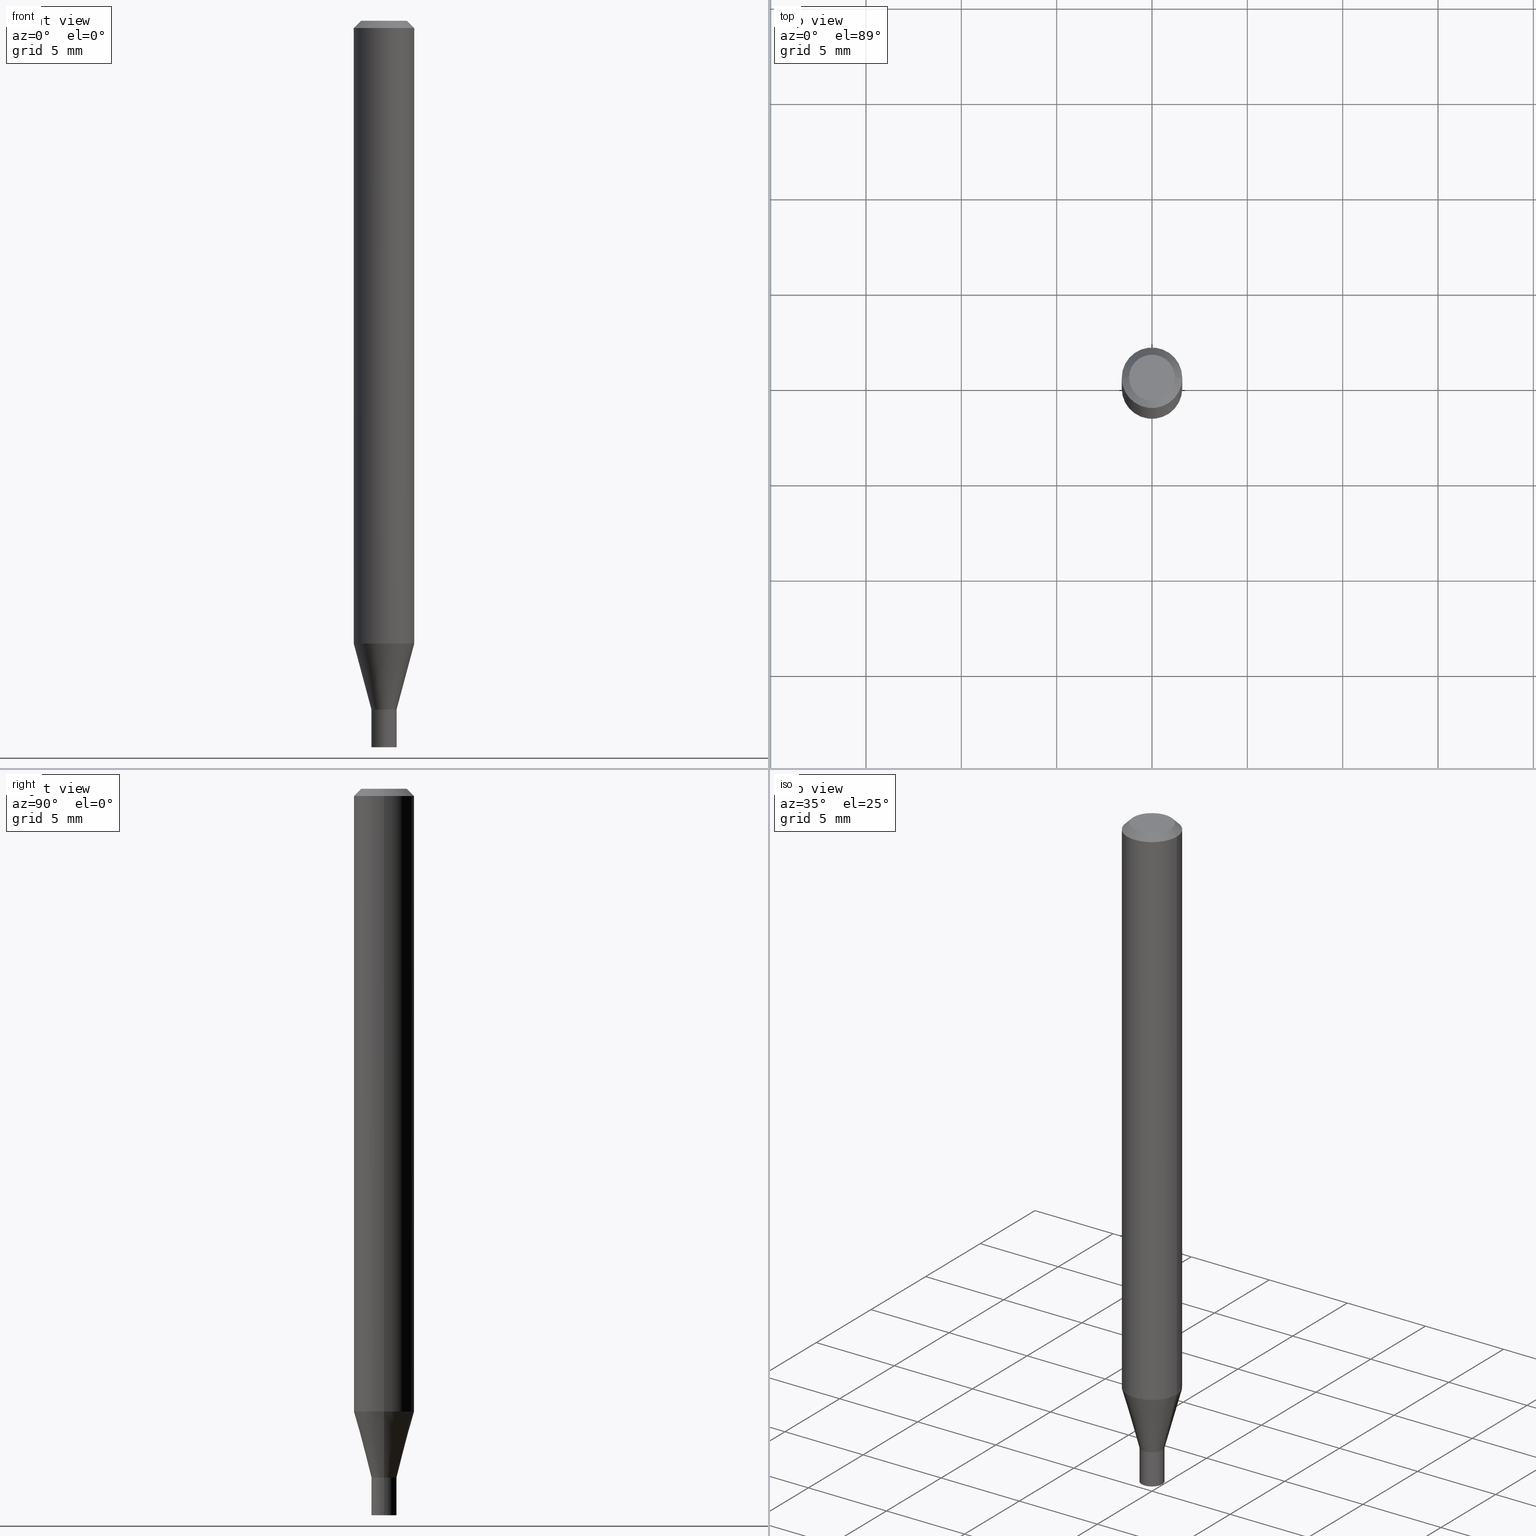
[diagram: canonical four-view strip — front | top / right | iso, engineering-drawing reading convention]
A machine part, canonical four-view strip (front | top / right | iso — engineering-drawing reading convention). The complete STEP part file that produces these views, byte-faithful:
ISO-10303-21;
HEADER;
FILE_DESCRIPTION (( 'STEP AP203' ),
    '1' );
FILE_NAME ('04087.STEP',
    '2024-03-14T16:58:20',
    ( '' ),
    ( '' ),
    'SwSTEP 2.0',
    'SolidWorks 2023',
    '' );
FILE_SCHEMA (( 'CONFIG_CONTROL_DESIGN' ));
ENDSEC;

DATA;
#1 = APPLICATION_CONTEXT ( 'configuration controlled 3d designs of mechanical parts and assemblies' ) ;
#2 = CARTESIAN_POINT ( 'NONE',  ( -0.02549999999999999489, -4.783698066216128840E-15, -1.422000000000000375 ) ) ;
#3 = CARTESIAN_POINT ( 'NONE',  ( 0.02599999999999999534, -1.815570296198429286E-16, 1.267805961706943054E-30 ) ) ;
#4 = AXIS2_PLACEMENT_3D ( 'NONE', #12, #63, #351 ) ;
#5 = ADVANCED_FACE ( 'NONE', ( #160 ), #435, .T. ) ;
#7 = CONICAL_SURFACE ( 'NONE', #193, 0.02549999999999999489, 0.7853981633974739252 ) ;
#6 = LINE ( 'NONE', #145, #38 ) ;
#8 = CARTESIAN_POINT ( 'NONE',  ( 3.476233907992172058E-29, -4.963140723165531861E-15, -1.421500000000000208 ) ) ;
#9 = CIRCLE ( 'NONE', #464, 0.02549999999999999489 ) ;
#10 = FACE_OUTER_BOUND ( 'NONE', #175, .T. ) ;
#11 = CARTESIAN_POINT ( 'NONE',  ( 3.477456642395264859E-29, -4.964886463834953365E-15, -1.421999999999999931 ) ) ;
#12 = CARTESIAN_POINT ( 'NONE',  ( -3.597438323505677396E-45, 5.136188506020282969E-31, 1.471062854863228050E-16 ) ) ;
#13 = EDGE_LOOP ( 'NONE', ( #449, #270, #382, #204 ) ) ;
#14 = ADVANCED_FACE ( 'NONE', ( #46 ), #437, .T. ) ;
#15 = DATE_TIME_ROLE ( 'classification_date' ) ;
#16 = VECTOR ( 'NONE', #94, 39.37007874015748143 ) ;
#17 = CC_DESIGN_APPROVAL ( #97, ( #440 ) ) ;
#18 = MANIFOLD_SOLID_BREP ( 'Body-Move/Copy2[2]', #404 ) ;
#19 = ORIENTED_EDGE ( 'NONE', *, *, #149, .T. ) ;
#20 = CARTESIAN_POINT ( 'NONE',  ( 0.06250000000000000000, -4.811533449433679005E-16, -0.01499999999999999944 ) ) ;
#21 = CALENDAR_DATE ( 2024, 14, 3 ) ;
#22 = ORIENTED_EDGE ( 'NONE', *, *, #149, .F. ) ;
#23 = ADVANCED_FACE ( 'NONE', ( #336 ), #86, .F. ) ;
#24 = EDGE_LOOP ( 'NONE', ( #376, #119 ) ) ;
#25 = CARTESIAN_POINT ( 'NONE',  ( 0.06250000000000000000, -4.364351673553916694E-16, 3.047610484872459871E-30 ) ) ;
#26 = ORIENTED_EDGE ( 'NONE', *, *, #292, .F. ) ;
#27 = DIRECTION ( 'NONE',  ( -2.438088387897960049E-29, 3.491481338843145188E-15, 1.000000000000000000 ) ) ;
#28 = DATE_TIME_ROLE ( 'creation_date' ) ;
#29 = VERTEX_POINT ( 'NONE', #255 ) ;
#30 = CARTESIAN_POINT ( 'NONE',  ( 0.02599999999999999534, -5.146443493454796047E-15, -1.421999999999999931 ) ) ;
#31 = ORIENTED_EDGE ( 'NONE', *, *, #147, .T. ) ;
#32 = EDGE_CURVE ( 'NONE', #35, #305, #243, .T. ) ;
#33 = CARTESIAN_POINT ( 'NONE',  ( 0.000000000000000000, 0.000000000000000000, 0.000000000000000000 ) ) ;
#34 = CARTESIAN_POINT ( 'NONE',  ( 0.000000000000000000, 0.000000000000000000, 0.000000000000000000 ) ) ;
#35 = VERTEX_POINT ( 'NONE', #180 ) ;
#36 = CIRCLE ( 'NONE', #92, 0.02599999999999999534 ) ;
#37 = DIRECTION ( 'NONE',  ( -2.445468806185136877E-29, 3.491481338843145188E-15, 1.000000000000000000 ) ) ;
#38 = VECTOR ( 'NONE', #364, 39.37007874015748143 ) ;
#39 = CARTESIAN_POINT ( 'NONE',  ( 3.144335237490484216E-29, -4.489277383951151768E-15, -1.285780145523736984 ) ) ;
#40 = ADVANCED_FACE ( 'NONE', ( #321 ), #466, .F. ) ;
#41 = DIRECTION ( 'NONE',  ( 1.000000000000000000, -6.982962677686262766E-15, 0.000000000000000000 ) ) ;
#42 = DIRECTION ( 'NONE',  ( -2.445468806185136597E-29, 3.491481338843145583E-15, 1.000000000000000000 ) ) ;
#43 = CARTESIAN_POINT ( 'NONE',  ( 3.477456642395264859E-29, -4.964886463834954154E-15, -1.422000000000000375 ) ) ;
#45 = CONICAL_SURFACE ( 'NONE', #413, 0.06250000000000000000, 0.7853981633974435050 ) ;
#44 = DIRECTION ( 'NONE',  ( -2.445468806185136877E-29, 3.491481338843145188E-15, 1.000000000000000000 ) ) ;
#46 = FACE_OUTER_BOUND ( 'NONE', #293, .T. ) ;
#47 = DIRECTION ( 'NONE',  ( 1.000000000000000000, -6.982962677686262766E-15, 0.000000000000000000 ) ) ;
#48 = CIRCLE ( 'NONE', #412, 0.02599999999999999534 ) ;
#49 = AXIS2_PLACEMENT_3D ( 'NONE', #187, #327, #288 ) ;
#50 = DIRECTION ( 'NONE',  ( 0.2588190451025211836, 1.565188264969622559E-15, 0.9659258262890679791 ) ) ;
#51 = EDGE_CURVE ( 'NONE', #245, #348, #394, .T. ) ;
#52 = PERSON_AND_ORGANIZATION ( #181, #110 ) ;
#53 = CALENDAR_DATE ( 2024, 14, 3 ) ;
#54 = CARTESIAN_POINT ( 'NONE',  ( 3.477456642395264859E-29, -4.964886463834954154E-15, -1.422000000000000375 ) ) ;
#55 = CARTESIAN_POINT ( 'NONE',  ( 0.000000000000000000, 0.000000000000000000, 0.000000000000000000 ) ) ;
#56 = EDGE_LOOP ( 'NONE', ( #241, #409, #343, #455 ) ) ;
#57 = VERTEX_POINT ( 'NONE', #195 ) ;
#58 = CARTESIAN_POINT ( 'NONE',  ( 0.06250000000000000000, -4.925712551306544226E-15, -1.285780145523736984 ) ) ;
#59 = APPROVAL_DATE_TIME ( #410, #431 ) ;
#60 = ORIENTED_EDGE ( 'NONE', *, *, #214, .T. ) ;
#61 = PERSON_AND_ORGANIZATION ( #181, #110 ) ;
#62 = EDGE_LOOP ( 'NONE', ( #64, #172, #329, #156 ) ) ;
#63 = DIRECTION ( 'NONE',  ( -2.445468806185136597E-29, 3.491481338843145583E-15, 1.000000000000000000 ) ) ;
#64 = ORIENTED_EDGE ( 'NONE', *, *, #32, .T. ) ;
#65 = CC_DESIGN_APPROVAL ( #434, ( #302 ) ) ;
#66 = LINE ( 'NONE', #277, #461 ) ;
#67 = DIRECTION ( 'NONE',  ( -2.445468806185136597E-29, 3.491481338843145583E-15, 1.000000000000000000 ) ) ;
#68 = ORIENTED_EDGE ( 'NONE', *, *, #147, .F. ) ;
#69 = DIRECTION ( 'NONE',  ( -2.445468806185136597E-29, 3.491481338843145583E-15, 1.000000000000000000 ) ) ;
#70 = CC_DESIGN_PERSON_AND_ORGANIZATION_ASSIGNMENT ( #374, #294, ( #352 ) ) ;
#71 = EDGE_CURVE ( 'NONE', #380, #130, #142, .T. ) ;
#72 = AXIS2_PLACEMENT_3D ( 'NONE', #116, #251, #402 ) ;
#73 = VECTOR ( 'NONE', #50, 39.37007874015748854 ) ;
#74 = DIRECTION ( 'NONE',  ( -0.7071067811865656694, 7.493145998870420424E-15, 0.7071067811865294761 ) ) ;
#75 = DIRECTION ( 'NONE',  ( -2.445468806185136597E-29, 3.491481338843145583E-15, 1.000000000000000000 ) ) ;
#76 = DIRECTION ( 'NONE',  ( 1.000000000000000000, -6.982962677686280910E-15, 0.000000000000000000 ) ) ;
#77 = EDGE_CURVE ( 'NONE', #90, #93, #369, .T. ) ;
#78 = AXIS2_PLACEMENT_3D ( 'NONE', #39, #320, #41 ) ;
#79 = AXIS2_PLACEMENT_3D ( 'NONE', #188, #285, #430 ) ;
#80 = APPLICATION_CONTEXT ( 'configuration controlled 3d designs of mechanical parts and assemblies' ) ;
#81 = ORIENTED_EDGE ( 'NONE', *, *, #286, .T. ) ;
#82 = DIRECTION ( 'NONE',  ( -2.438088387897960049E-29, 3.491481338843145188E-15, 1.000000000000000000 ) ) ;
#83 = EDGE_CURVE ( 'NONE', #29, #212, #358, .T. ) ;
#84 = LENGTH_MEASURE_WITH_UNIT ( LENGTH_MEASURE( 0.02539999999999999897 ), #184 );
#85 = LINE ( 'NONE', #20, #317 ) ;
#86 = PLANE ( 'NONE',  #201 ) ;
#87 = CIRCLE ( 'NONE', #211, 0.02600000000000019656 ) ;
#88 = CIRCLE ( 'NONE', #79, 0.04749999999999999362 ) ;
#89 = CARTESIAN_POINT ( 'NONE',  ( 0.02600000000000019656, -5.146443493454798413E-15, -1.421999999999999931 ) ) ;
#90 = VERTEX_POINT ( 'NONE', #30 ) ;
#91 = DIRECTION ( 'NONE',  ( 0.7071067811865441310, -7.319954787623245001E-15, -0.7071067811865509034 ) ) ;
#92 = AXIS2_PLACEMENT_3D ( 'NONE', #229, #377, #217 ) ;
#93 = VERTEX_POINT ( 'NONE', #120 ) ;
#94 = DIRECTION ( 'NONE',  ( -2.445468806185136877E-29, 3.491481338843145188E-15, 1.000000000000000000 ) ) ;
#95 = DIMENSIONAL_EXPONENTS ( 1.000000000000000000, 0.000000000000000000, 0.000000000000000000, 0.000000000000000000, 0.000000000000000000, 0.000000000000000000, 0.000000000000000000 ) ;
#96 = ORIENTED_EDGE ( 'NONE', *, *, #182, .F. ) ;
#97 = APPROVAL ( #418, 'UNSPECIFIED' ) ;
#98 = ORIENTED_EDGE ( 'NONE', *, *, #397, .T. ) ;
#99 = EDGE_CURVE ( 'NONE', #57, #445, #295, .T. ) ;
#100 = DIRECTION ( 'NONE',  ( -2.445468806185136877E-29, 3.491481338843145188E-15, 1.000000000000000000 ) ) ;
#101 = ORIENTED_EDGE ( 'NONE', *, *, #417, .T. ) ;
#102 = CONICAL_SURFACE ( 'NONE', #114, 0.06250000000000000000, 0.7853981633974435050 ) ;
#103 = CIRCLE ( 'NONE', #247, 0.06250000000000000000 ) ;
#104 = DIRECTION ( 'NONE',  ( -2.445468806185136597E-29, 3.491481338843145583E-15, 1.000000000000000000 ) ) ;
#105 = CARTESIAN_POINT ( 'NONE',  ( 0.02600000000000019656, -1.815570296198443091E-16, 1.267805961706953038E-30 ) ) ;
#106 = CYLINDRICAL_SURFACE ( 'NONE', #366, 0.02600000000000019656 ) ;
#107 = EDGE_CURVE ( 'NONE', #93, #90, #36, .T. ) ;
#108 = CARTESIAN_POINT ( 'NONE',  ( 1.815570296198776877E-16, 0.02599999999999503403, -1.421999999999999931 ) ) ;
#109 = DIRECTION ( 'NONE',  ( -1.000000000000000000, 6.982962677686265922E-15, -4.876176775795935793E-29 ) ) ;
#110 = ORGANIZATION ( 'UNSPECIFIED', 'UNSPECIFIED', '' ) ;
#111 = DIRECTION ( 'NONE',  ( -2.445468806185136597E-29, 3.491481338843145583E-15, 1.000000000000000000 ) ) ;
#112 = EDGE_CURVE ( 'NONE', #213, #441, #248, .T. ) ;
#113 = DIRECTION ( 'NONE',  ( 0.7071067811865656694, -2.468850131082446387E-15, 0.7071067811865294761 ) ) ;
#114 = AXIS2_PLACEMENT_3D ( 'NONE', #330, #395, #183 ) ;
#115 = CARTESIAN_POINT ( 'NONE',  ( 3.668203209277704895E-29, -5.237222008264718177E-15, -1.500000000000000222 ) ) ;
#116 = CARTESIAN_POINT ( 'NONE',  ( 0.000000000000000000, 0.000000000000000000, 0.000000000000000000 ) ) ;
#117 = EDGE_CURVE ( 'NONE', #130, #380, #257, .T. ) ;
#118 = CARTESIAN_POINT ( 'NONE',  ( 3.477456642395264859E-29, -4.964886463834953365E-15, -1.421999999999999931 ) ) ;
#119 = ORIENTED_EDGE ( 'NONE', *, *, #427, .T. ) ;
#120 = CARTESIAN_POINT ( 'NONE',  ( -0.02599999999999999534, -4.916313124752210742E-15, -1.421999999999999931 ) ) ;
#121 = AXIS2_PLACEMENT_3D ( 'NONE', #235, #27, #465 ) ;
#122 = APPROVAL_PERSON_ORGANIZATION ( #155, #431, #298 ) ;
#123 = APPROVAL_ROLE ( '' ) ;
#124 = ORIENTED_EDGE ( 'NONE', *, *, #112, .T. ) ;
#125 = CALENDAR_DATE ( 2024, 14, 3 ) ;
#126 = ORIENTED_EDGE ( 'NONE', *, *, #414, .F. ) ;
#127 = APPROVAL_DATE_TIME ( #300, #97 ) ;
#128 = ORIENTED_EDGE ( 'NONE', *, *, #446, .F. ) ;
#129 =( NAMED_UNIT ( * ) PLANE_ANGLE_UNIT ( ) SI_UNIT ( $, .RADIAN. ) );
#130 = VERTEX_POINT ( 'NONE', #58 ) ;
#131 = PRODUCT_DEFINITION_SHAPE ( 'NONE', 'NONE',  #302 ) ;
#132 = DIRECTION ( 'NONE',  ( 2.445468806185136597E-29, -3.491481338843145583E-15, -1.000000000000000000 ) ) ;
#133 = EDGE_CURVE ( 'NONE', #445, #57, #48, .T. ) ;
#134 = DATE_AND_TIME ( #152, #341 ) ;
#135 = CARTESIAN_POINT ( 'NONE',  ( -0.06250000000000000000, 4.440892098500626162E-16, -3.074334431409316114E-30 ) ) ;
#136 = VERTEX_POINT ( 'NONE', #367 ) ;
#137 = EDGE_LOOP ( 'NONE', ( #168, #60, #419, #457 ) ) ;
#138 = CC_DESIGN_SECURITY_CLASSIFICATION ( #440, ( #352 ) ) ;
#139 = DIRECTION ( 'NONE',  ( -1.000000000000000000, 6.982962677686265922E-15, -4.876176775795935793E-29 ) ) ;
#140 = ADVANCED_BREP_SHAPE_REPRESENTATION ( '04087', ( #328, #18, #426 ), #283 ) ;
#141 = DIRECTION ( 'NONE',  ( 2.438088387897960049E-29, -3.491481338843145188E-15, -1.000000000000000000 ) ) ;
#142 = CIRCLE ( 'NONE', #450, 0.06250000000000000000 ) ;
#143 = CIRCLE ( 'NONE', #49, 0.06250000000000000000 ) ;
#144 = ADVANCED_FACE ( 'NONE', ( #190 ), #102, .T. ) ;
#145 = CARTESIAN_POINT ( 'NONE',  ( -0.02599999999999999534, 1.847411112976260152E-16, -1.278923123466275386E-30 ) ) ;
#146 = CARTESIAN_POINT ( 'NONE',  ( 3.144335237490484216E-29, -4.489277383951151768E-15, -1.285780145523736984 ) ) ;
#147 = EDGE_CURVE ( 'NONE', #348, #441, #282, .T. ) ;
#148 = CARTESIAN_POINT ( 'NONE',  ( 0.04749999999999999362, -4.035134999187575172E-16, 1.471062854863253934E-16 ) ) ;
#149 = EDGE_CURVE ( 'NONE', #305, #35, #87, .T. ) ;
#150 = VECTOR ( 'NONE', #113, 39.37007874015748143 ) ;
#151 = DIRECTION ( 'NONE',  ( -2.445468806185136597E-29, 3.491481338843145583E-15, 1.000000000000000000 ) ) ;
#152 = CALENDAR_DATE ( 2024, 14, 3 ) ;
#153 = AXIS2_PLACEMENT_3D ( 'NONE', #8, #400, #76 ) ;
#154 = PRODUCT ( '04087', '04087', '', ( #239 ) ) ;
#155 = PERSON_AND_ORGANIZATION ( #181, #110 ) ;
#156 = ORIENTED_EDGE ( 'NONE', *, *, #319, .F. ) ;
#157 = DIRECTION ( 'NONE',  ( -2.445468806185136597E-29, 3.491481338843145583E-15, 1.000000000000000000 ) ) ;
#158 = APPROVAL_STATUS ( 'not_yet_approved' ) ;
#159 = EDGE_LOOP ( 'NONE', ( #203, #232, #260, #296 ) ) ;
#160 = FACE_OUTER_BOUND ( 'NONE', #333, .T. ) ;
#161 = CARTESIAN_POINT ( 'NONE',  ( 0.000000000000000000, 0.000000000000000000, 0.000000000000000000 ) ) ;
#162 = APPROVAL_STATUS ( 'not_yet_approved' ) ;
#163 = ORIENTED_EDGE ( 'NONE', *, *, #234, .F. ) ;
#164 = ADVANCED_FACE ( 'NONE', ( #267 ), #169, .F. ) ;
#165 = LINE ( 'NONE', #25, #16 ) ;
#166 = AXIS2_PLACEMENT_3D ( 'NONE', #33, #281, #396 ) ;
#167 = COORDINATED_UNIVERSAL_TIME_OFFSET ( 5, 0, .BEHIND. ) ;
#168 = ORIENTED_EDGE ( 'NONE', *, *, #427, .F. ) ;
#169 = CYLINDRICAL_SURFACE ( 'NONE', #249, 0.02600000000000019656 ) ;
#170 = CARTESIAN_POINT ( 'NONE',  ( 3.668203209277705088E-31, -5.237222008264718399E-17, -0.01499999999999999944 ) ) ;
#171 = FACE_OUTER_BOUND ( 'NONE', #13, .T. ) ;
#172 = ORIENTED_EDGE ( 'NONE', *, *, #182, .T. ) ;
#173 = LINE ( 'NONE', #105, #200 ) ;
#174 = FACE_OUTER_BOUND ( 'NONE', #340, .T. ) ;
#175 = EDGE_LOOP ( 'NONE', ( #26, #460 ) ) ;
#176 = CARTESIAN_POINT ( 'NONE',  ( -0.06250000000000000000, -4.045188174101089941E-15, -1.285780145523736984 ) ) ;
#177 = CARTESIAN_POINT ( 'NONE',  ( -0.02599999999999999534, -4.916313124752210742E-15, -1.500000000000000222 ) ) ;
#178 = CC_DESIGN_PERSON_AND_ORGANIZATION_ASSIGNMENT ( #339, #345, ( #154 ) ) ;
#179 = DIRECTION ( 'NONE',  ( 2.438088387897960049E-29, -3.491481338843145188E-15, -1.000000000000000000 ) ) ;
#180 = CARTESIAN_POINT ( 'NONE',  ( 0.02600000000000019656, -5.146443493454798413E-15, -1.421999999999999931 ) ) ;
#181 = PERSON ( 'UNSPECIFIED', 'UNSPECIFIED', 'UNSPECIFIED', ('UNSPECIFIED'), ('UNSPECIFIED'), ('UNSPECIFIED') ) ;
#182 = EDGE_CURVE ( 'NONE', #305, #380, #66, .T. ) ;
#183 = DIRECTION ( 'NONE',  ( -1.000000000000000000, 6.982962677686266711E-15, 0.000000000000000000 ) ) ;
#184 =( LENGTH_UNIT ( ) NAMED_UNIT ( * ) SI_UNIT ( $, .METRE. ) );
#185 = CARTESIAN_POINT ( 'NONE',  ( 3.668203209277705088E-31, -5.237222008264718399E-17, -0.01499999999999999944 ) ) ;
#186 = CC_DESIGN_APPROVAL ( #431, ( #352 ) ) ;
#187 = CARTESIAN_POINT ( 'NONE',  ( 3.668203209277705088E-31, -5.237222008264718399E-17, -0.01499999999999999944 ) ) ;
#188 = CARTESIAN_POINT ( 'NONE',  ( -3.597438323505677396E-45, 5.136188506020282969E-31, 1.471062854863228050E-16 ) ) ;
#189 = EDGE_CURVE ( 'NONE', #35, #441, #173, .T. ) ;
#190 = FACE_OUTER_BOUND ( 'NONE', #159, .T. ) ;
#191 = AXIS2_PLACEMENT_3D ( 'NONE', #11, #151, #254 ) ;
#192 = ORIENTED_EDGE ( 'NONE', *, *, #428, .T. ) ;
#193 = AXIS2_PLACEMENT_3D ( 'NONE', #458, #104, #392 ) ;
#194 = DIRECTION ( 'NONE',  ( -2.445468806185136597E-29, 3.491481338843145583E-15, 1.000000000000000000 ) ) ;
#195 = CARTESIAN_POINT ( 'NONE',  ( 0.02599999999999999534, -5.418779037884561648E-15, -1.500000000000000222 ) ) ;
#196 = FACE_OUTER_BOUND ( 'NONE', #299, .T. ) ;
#197 = ADVANCED_FACE ( 'NONE', ( #215 ), #357, .F. ) ;
#198 = CYLINDRICAL_SURFACE ( 'NONE', #166, 0.06250000000000000000 ) ;
#199 = ORIENTED_EDGE ( 'NONE', *, *, #51, .F. ) ;
#200 = VECTOR ( 'NONE', #37, 39.37007874015748143 ) ;
#201 = AXIS2_PLACEMENT_3D ( 'NONE', #425, #82, #252 ) ;
#202 = AXIS2_PLACEMENT_3D ( 'NONE', #161, #67, #354 ) ;
#203 = ORIENTED_EDGE ( 'NONE', *, *, #214, .F. ) ;
#204 = ORIENTED_EDGE ( 'NONE', *, *, #107, .F. ) ;
#205 = DIRECTION ( 'NONE',  ( -2.445468806185136597E-29, 3.491481338843145583E-15, 1.000000000000000000 ) ) ;
#206 = DIRECTION ( 'NONE',  ( 1.000000000000000000, -6.982962677686267499E-15, 4.876176775795935793E-29 ) ) ;
#207 = DATE_AND_TIME ( #53, #216 ) ;
#208 = DIRECTION ( 'NONE',  ( 0.000000000000000000, 0.000000000000000000, 1.000000000000000000 ) ) ;
#209 = VERTEX_POINT ( 'NONE', #361 ) ;
#210 = DIRECTION ( 'NONE',  ( -1.000000000000000000, 6.982962677686266711E-15, 0.000000000000000000 ) ) ;
#211 = AXIS2_PLACEMENT_3D ( 'NONE', #221, #365, #459 ) ;
#212 = VERTEX_POINT ( 'NONE', #148 ) ;
#213 = VERTEX_POINT ( 'NONE', #326 ) ;
#214 = EDGE_CURVE ( 'NONE', #212, #209, #85, .T. ) ;
#215 = FACE_OUTER_BOUND ( 'NONE', #24, .T. ) ;
#216 = LOCAL_TIME ( 12, 58, 20.00000000000000000, #342 ) ;
#217 = DIRECTION ( 'NONE',  ( 1.000000000000000000, -6.982962677686258822E-15, 0.000000000000000000 ) ) ;
#218 = ADVANCED_FACE ( 'NONE', ( #10 ), #452, .F. ) ;
#219 = CARTESIAN_POINT ( 'NONE',  ( 3.316907271900976096E-16, 0.04749999999999999362, -9.229222085188799396E-17 ) ) ;
#220 = DESIGN_CONTEXT ( 'detailed design', #80, 'design' ) ;
#221 = CARTESIAN_POINT ( 'NONE',  ( 3.477456642395264859E-29, -4.964886463834953365E-15, -1.421999999999999931 ) ) ;
#222 = AXIS2_PLACEMENT_3D ( 'NONE', #279, #205, #390 ) ;
#223 = DIRECTION ( 'NONE',  ( 1.000000000000000000, -6.982962677686266711E-15, 0.000000000000000000 ) ) ;
#224 = DIRECTION ( 'NONE',  ( -2.445468806185136597E-29, 3.491481338843145583E-15, 1.000000000000000000 ) ) ;
#225 = DIRECTION ( 'NONE',  ( -2.445468806185136597E-29, 3.491481338843145583E-15, 1.000000000000000000 ) ) ;
#226 = LOCAL_TIME ( 12, 58, 20.00000000000000000, #379 ) ;
#227 = EDGE_CURVE ( 'NONE', #441, #348, #421, .T. ) ;
#228 = LINE ( 'NONE', #3, #318 ) ;
#229 = CARTESIAN_POINT ( 'NONE',  ( 3.477456642395264859E-29, -4.964886463834953365E-15, -1.421999999999999931 ) ) ;
#230 = PERSON_AND_ORGANIZATION ( #181, #110 ) ;
#231 = LINE ( 'NONE', #89, #73 ) ;
#232 = ORIENTED_EDGE ( 'NONE', *, *, #83, .F. ) ;
#233 = CARTESIAN_POINT ( 'NONE',  ( 3.668203209277704895E-29, -5.237222008264718177E-15, -1.500000000000000222 ) ) ;
#234 = EDGE_CURVE ( 'NONE', #130, #209, #165, .T. ) ;
#235 = CARTESIAN_POINT ( 'NONE',  ( 3.477456642395264859E-29, -4.964886463834954154E-15, -1.422000000000000375 ) ) ;
#236 = CONICAL_SURFACE ( 'NONE', #393, 0.02549999999999999489, 0.7853981633974739252 ) ;
#237 = ADVANCED_FACE ( 'NONE', ( #453 ), #45, .T. ) ;
#238 = DIRECTION ( 'NONE',  ( 1.000000000000000000, -6.982962677686276966E-15, 0.000000000000000000 ) ) ;
#239 = MECHANICAL_CONTEXT ( 'NONE', #1, 'mechanical' ) ;
#240 = ORIENTED_EDGE ( 'NONE', *, *, #51, .T. ) ;
#241 = ORIENTED_EDGE ( 'NONE', *, *, #428, .F. ) ;
#242 = ORIENTED_EDGE ( 'NONE', *, *, #117, .T. ) ;
#243 = CIRCLE ( 'NONE', #264, 0.02600000000000019656 ) ;
#244 = APPROVAL_PERSON_ORGANIZATION ( #438, #97, #123 ) ;
#245 = VERTEX_POINT ( 'NONE', #310 ) ;
#246 = AXIS2_PLACEMENT_3D ( 'NONE', #362, #42, #334 ) ;
#247 = AXIS2_PLACEMENT_3D ( 'NONE', #185, #287, #223 ) ;
#248 = LINE ( 'NONE', #323, #150 ) ;
#249 = AXIS2_PLACEMENT_3D ( 'NONE', #356, #315, #387 ) ;
#250 = CONICAL_SURFACE ( 'NONE', #462, 0.02600000000000019656, 0.2617993877991499074 ) ;
#251 = DIRECTION ( 'NONE',  ( -2.445468806185136597E-29, 3.491481338843145583E-15, 1.000000000000000000 ) ) ;
#252 = DIRECTION ( 'NONE',  ( 1.000000000000000000, -6.982962677686265922E-15, 4.876176775795935793E-29 ) ) ;
#253 = DIRECTION ( 'NONE',  ( -2.445468806185136597E-29, 3.491481338843145583E-15, 1.000000000000000000 ) ) ;
#254 = DIRECTION ( 'NONE',  ( 1.000000000000000000, -6.982962677686280121E-15, 0.000000000000000000 ) ) ;
#255 = CARTESIAN_POINT ( 'NONE',  ( -0.04749999999999999362, 3.578768372314212971E-16, 1.471062854863204137E-16 ) ) ;
#256 = ADVANCED_FACE ( 'NONE', ( #271 ), #274, .T. ) ;
#257 = CIRCLE ( 'NONE', #78, 0.06250000000000000000 ) ;
#258 = DIRECTION ( 'NONE',  ( -2.445468806185136597E-29, 3.491481338843145583E-15, 1.000000000000000000 ) ) ;
#259 = COORDINATED_UNIVERSAL_TIME_OFFSET ( 5, 0, .BEHIND. ) ;
#260 = ORIENTED_EDGE ( 'NONE', *, *, #280, .T. ) ;
#261 =( NAMED_UNIT ( * ) SI_UNIT ( $, .STERADIAN. ) SOLID_ANGLE_UNIT ( ) );
#262 = APPLICATION_PROTOCOL_DEFINITION ( 'international standard', 'config_control_design', 1994, #1 ) ;
#263 = ORIENTED_EDGE ( 'NONE', *, *, #286, .F. ) ;
#264 = AXIS2_PLACEMENT_3D ( 'NONE', #291, #75, #372 ) ;
#265 = CC_DESIGN_DATE_AND_TIME_ASSIGNMENT ( #207, #28, ( #302 ) ) ;
#266 = VECTOR ( 'NONE', #44, 39.37007874015748143 ) ;
#267 = FACE_OUTER_BOUND ( 'NONE', #268, .T. ) ;
#268 = EDGE_LOOP ( 'NONE', ( #22, #192, #31, #355 ) ) ;
#269 = APPROVAL_ROLE ( '' ) ;
#270 = ORIENTED_EDGE ( 'NONE', *, *, #133, .T. ) ;
#271 = FACE_OUTER_BOUND ( 'NONE', #385, .T. ) ;
#272 = ADVANCED_FACE ( 'NONE', ( #171 ), #311, .T. ) ;
#273 = EDGE_LOOP ( 'NONE', ( #313, #275 ) ) ;
#274 = CYLINDRICAL_SURFACE ( 'NONE', #202, 0.02599999999999999534 ) ;
#275 = ORIENTED_EDGE ( 'NONE', *, *, #107, .T. ) ;
#276 = CC_DESIGN_PERSON_AND_ORGANIZATION_ASSIGNMENT ( #52, #337, ( #440 ) ) ;
#277 = CARTESIAN_POINT ( 'NONE',  ( -0.02600000000000019656, -4.780145352537325575E-15, -1.421999999999999931 ) ) ;
#278 = DIRECTION ( 'NONE',  ( 1.000000000000000000, -6.982962677686266711E-15, 4.876176775795936353E-29 ) ) ;
#279 = CARTESIAN_POINT ( 'NONE',  ( 3.476233907992172058E-29, -4.963140723165531861E-15, -1.421500000000000208 ) ) ;
#280 = EDGE_CURVE ( 'NONE', #29, #136, #383, .T. ) ;
#281 = DIRECTION ( 'NONE',  ( -2.445468806185136597E-29, 3.491481338843145583E-15, 1.000000000000000000 ) ) ;
#282 = CIRCLE ( 'NONE', #153, 0.02600000000000019310 ) ;
#283 =( GEOMETRIC_REPRESENTATION_CONTEXT ( 3 ) GLOBAL_UNCERTAINTY_ASSIGNED_CONTEXT ( ( #373 ) ) GLOBAL_UNIT_ASSIGNED_CONTEXT ( ( #398, #129, #261 ) ) REPRESENTATION_CONTEXT ( 'NONE', 'WORKASPACE' ) );
#284 = DIRECTION ( 'NONE',  ( 1.000000000000000000, -6.982962677686280121E-15, 0.000000000000000000 ) ) ;
#285 = DIRECTION ( 'NONE',  ( -2.445468806185136597E-29, 3.491481338843145583E-15, 1.000000000000000000 ) ) ;
#286 = EDGE_CURVE ( 'NONE', #380, #136, #447, .T. ) ;
#287 = DIRECTION ( 'NONE',  ( -2.445468806185136597E-29, 3.491481338843145583E-15, 1.000000000000000000 ) ) ;
#288 = DIRECTION ( 'NONE',  ( 1.000000000000000000, -6.982962677686266711E-15, 0.000000000000000000 ) ) ;
#289 = CARTESIAN_POINT ( 'NONE',  ( -0.02600000000000019656, -4.412666763319206969E-15, -1.421999999999999931 ) ) ;
#290 = ORIENTED_EDGE ( 'NONE', *, *, #292, .T. ) ;
#291 = CARTESIAN_POINT ( 'NONE',  ( 3.477456642395264859E-29, -4.964886463834953365E-15, -1.421999999999999931 ) ) ;
#292 = EDGE_CURVE ( 'NONE', #213, #245, #9, .T. ) ;
#293 = EDGE_LOOP ( 'NONE', ( #96, #19, #416, #312 ) ) ;
#294 = PERSON_AND_ORGANIZATION_ROLE ( 'creator' ) ;
#295 = CIRCLE ( 'NONE', #401, 0.02599999999999999534 ) ;
#296 = ORIENTED_EDGE ( 'NONE', *, *, #446, .T. ) ;
#297 = CIRCLE ( 'NONE', #451, 0.02549999999999999489 ) ;
#298 = APPROVAL_ROLE ( '' ) ;
#299 = EDGE_LOOP ( 'NONE', ( #290, #240, #391, #344 ) ) ;
#300 = DATE_AND_TIME ( #21, #422 ) ;
#301 = ORIENTED_EDGE ( 'NONE', *, *, #71, .T. ) ;
#302 = PRODUCT_DEFINITION ( 'UNKNOWN', '', #352, #220 ) ;
#303 = CARTESIAN_POINT ( 'NONE',  ( -0.06250000000000000000, 3.840629472727444916E-16, -0.01499999999999999944 ) ) ;
#304 = DATE_AND_TIME ( #125, #226 ) ;
#305 = VERTEX_POINT ( 'NONE', #289 ) ;
#306 = VECTOR ( 'NONE', #74, 39.37007874015748143 ) ;
#307 = CALENDAR_DATE ( 2024, 14, 3 ) ;
#308 = EDGE_LOOP ( 'NONE', ( #420, #386 ) ) ;
#309 = PRODUCT_RELATED_PRODUCT_CATEGORY ( 'detail', '', ( #154 ) ) ;
#310 = CARTESIAN_POINT ( 'NONE',  ( -0.02549999999999999489, -4.781048839042016850E-15, -1.422000000000000375 ) ) ;
#311 = CYLINDRICAL_SURFACE ( 'NONE', #359, 0.02599999999999999534 ) ;
#312 = ORIENTED_EDGE ( 'NONE', *, *, #71, .F. ) ;
#313 = ORIENTED_EDGE ( 'NONE', *, *, #77, .T. ) ;
#314 = ADVANCED_FACE ( 'NONE', ( #436 ), #250, .T. ) ;
#315 = DIRECTION ( 'NONE',  ( -2.445468806185136597E-29, 3.491481338843145583E-15, 1.000000000000000000 ) ) ;
#316 = FACE_OUTER_BOUND ( 'NONE', #56, .T. ) ;
#317 = VECTOR ( 'NONE', #91, 39.37007874015748143 ) ;
#318 = VECTOR ( 'NONE', #429, 39.37007874015748143 ) ;
#319 = EDGE_CURVE ( 'NONE', #35, #130, #231, .T. ) ;
#320 = DIRECTION ( 'NONE',  ( -2.445468806185136597E-29, 3.491481338843145583E-15, 1.000000000000000000 ) ) ;
#321 = FACE_OUTER_BOUND ( 'NONE', #273, .T. ) ;
#322 = FACE_OUTER_BOUND ( 'NONE', #346, .T. ) ;
#323 = CARTESIAN_POINT ( 'NONE',  ( 0.02549999999999999489, -5.142952012115954617E-15, -1.422000000000000375 ) ) ;
#324 = CARTESIAN_POINT ( 'NONE',  ( -0.02600000000000019656, 1.847411112976274450E-16, -1.278923123466285195E-30 ) ) ;
#325 = AXIS2_PLACEMENT_3D ( 'NONE', #219, #179, #139 ) ;
#326 = CARTESIAN_POINT ( 'NONE',  ( 0.02549999999999999489, -5.142952012115954617E-15, -1.422000000000000375 ) ) ;
#327 = DIRECTION ( 'NONE',  ( -2.445468806185136597E-29, 3.491481338843145583E-15, 1.000000000000000000 ) ) ;
#328 = MANIFOLD_SOLID_BREP ( 'Body-Move/Copy2[1]', #432 ) ;
#329 = ORIENTED_EDGE ( 'NONE', *, *, #117, .F. ) ;
#330 = CARTESIAN_POINT ( 'NONE',  ( 3.668203209277705088E-31, -5.237222008264718399E-17, -0.01499999999999999944 ) ) ;
#331 = VECTOR ( 'NONE', #100, 39.37007874015748143 ) ;
#332 = EDGE_CURVE ( 'NONE', #57, #90, #228, .T. ) ;
#333 = EDGE_LOOP ( 'NONE', ( #263, #301, #411, #128 ) ) ;
#334 = DIRECTION ( 'NONE',  ( 1.000000000000000000, -6.982962677686258822E-15, 0.000000000000000000 ) ) ;
#335 = CARTESIAN_POINT ( 'NONE',  ( 3.477456642395264859E-29, -4.964886463834954154E-15, -1.422000000000000375 ) ) ;
#336 = FACE_OUTER_BOUND ( 'NONE', #308, .T. ) ;
#337 = PERSON_AND_ORGANIZATION_ROLE ( 'classification_officer' ) ;
#338 = ORIENTED_EDGE ( 'NONE', *, *, #332, .F. ) ;
#339 = PERSON_AND_ORGANIZATION ( #181, #110 ) ;
#340 = EDGE_LOOP ( 'NONE', ( #199, #98, #124, #68 ) ) ;
#341 = LOCAL_TIME ( 12, 58, 20.00000000000000000, #454 ) ;
#342 = COORDINATED_UNIVERSAL_TIME_OFFSET ( 5, 0, .BEHIND. ) ;
#343 = ORIENTED_EDGE ( 'NONE', *, *, #189, .T. ) ;
#344 = ORIENTED_EDGE ( 'NONE', *, *, #112, .F. ) ;
#345 = PERSON_AND_ORGANIZATION_ROLE ( 'design_owner' ) ;
#346 = EDGE_LOOP ( 'NONE', ( #242, #81, #126, #163 ) ) ;
#347 = APPLICATION_PROTOCOL_DEFINITION ( 'international standard', 'config_control_design', 1994, #80 ) ;
#348 = VERTEX_POINT ( 'NONE', #403 ) ;
#349 = ADVANCED_FACE ( 'NONE', ( #196 ), #236, .T. ) ;
#350 = ADVANCED_FACE ( 'NONE', ( #322 ), #198, .T. ) ;
#351 = DIRECTION ( 'NONE',  ( 1.000000000000000000, -6.982962677686267499E-15, 4.852736867747366768E-29 ) ) ;
#352 = PRODUCT_DEFINITION_FORMATION_WITH_SPECIFIED_SOURCE ( 'ANY', '', #154, .NOT_KNOWN. ) ;
#353 = ORIENTED_EDGE ( 'NONE', *, *, #99, .T. ) ;
#354 = DIRECTION ( 'NONE',  ( 1.000000000000000000, -6.982962677686267499E-15, 4.876176775795935793E-29 ) ) ;
#355 = ORIENTED_EDGE ( 'NONE', *, *, #189, .F. ) ;
#356 = CARTESIAN_POINT ( 'NONE',  ( 0.000000000000000000, 0.000000000000000000, 0.000000000000000000 ) ) ;
#357 = PLANE ( 'NONE',  #325 ) ;
#358 = CIRCLE ( 'NONE', #4, 0.04749999999999999362 ) ;
#359 = AXIS2_PLACEMENT_3D ( 'NONE', #34, #378, #206 ) ;
#360 = CC_DESIGN_PERSON_AND_ORGANIZATION_ASSIGNMENT ( #415, #384, ( #302 ) ) ;
#361 = CARTESIAN_POINT ( 'NONE',  ( 0.06250000000000000000, -4.888073874380388472E-16, -0.01499999999999999944 ) ) ;
#362 = CARTESIAN_POINT ( 'NONE',  ( 3.477456642395264859E-29, -4.964886463834953365E-15, -1.421999999999999931 ) ) ;
#363 = DIRECTION ( 'NONE',  ( 1.000000000000000000, -6.982962677686276966E-15, 0.000000000000000000 ) ) ;
#364 = DIRECTION ( 'NONE',  ( -2.445468806185136877E-29, 3.491481338843145188E-15, 1.000000000000000000 ) ) ;
#365 = DIRECTION ( 'NONE',  ( -2.445468806185136597E-29, 3.491481338843145583E-15, 1.000000000000000000 ) ) ;
#366 = AXIS2_PLACEMENT_3D ( 'NONE', #463, #69, #278 ) ;
#367 = CARTESIAN_POINT ( 'NONE',  ( -0.06250000000000000000, -1.826735592166837005E-15, -0.01499999999999999944 ) ) ;
#368 = ADVANCED_FACE ( 'NONE', ( #174 ), #7, .T. ) ;
#369 = CIRCLE ( 'NONE', #246, 0.02599999999999999534 ) ;
#370 = APPROVAL_PERSON_ORGANIZATION ( #61, #434, #269 ) ;
#371 = CC_DESIGN_DATE_AND_TIME_ASSIGNMENT ( #134, #15, ( #440 ) ) ;
#372 = DIRECTION ( 'NONE',  ( 1.000000000000000000, -6.982962677686280121E-15, 0.000000000000000000 ) ) ;
#373 = UNCERTAINTY_MEASURE_WITH_UNIT (LENGTH_MEASURE( 1.000000000000000082E-05 ), #398, 'distance_accuracy_value', 'NONE');
#374 = PERSON_AND_ORGANIZATION ( #181, #110 ) ;
#375 = DIRECTION ( 'NONE',  ( 1.000000000000000000, -6.982962677686276966E-15, 0.000000000000000000 ) ) ;
#376 = ORIENTED_EDGE ( 'NONE', *, *, #83, .T. ) ;
#377 = DIRECTION ( 'NONE',  ( -2.445468806185136597E-29, 3.491481338843145583E-15, 1.000000000000000000 ) ) ;
#378 = DIRECTION ( 'NONE',  ( -2.445468806185136597E-29, 3.491481338843145583E-15, 1.000000000000000000 ) ) ;
#379 = COORDINATED_UNIVERSAL_TIME_OFFSET ( 5, 0, .BEHIND. ) ;
#380 = VERTEX_POINT ( 'NONE', #176 ) ;
#381 = APPROVAL_DATE_TIME ( #304, #434 ) ;
#382 = ORIENTED_EDGE ( 'NONE', *, *, #332, .T. ) ;
#383 = LINE ( 'NONE', #303, #405 ) ;
#384 = PERSON_AND_ORGANIZATION_ROLE ( 'creator' ) ;
#385 = EDGE_LOOP ( 'NONE', ( #353, #101, #406, #338 ) ) ;
#386 = ORIENTED_EDGE ( 'NONE', *, *, #133, .F. ) ;
#387 = DIRECTION ( 'NONE',  ( 1.000000000000000000, -6.982962677686266711E-15, 4.876176775795936353E-29 ) ) ;
#388 = AXIS2_PLACEMENT_3D ( 'NONE', #108, #141, #109 ) ;
#389 = LOCAL_TIME ( 12, 58, 20.00000000000000000, #167 ) ;
#390 = DIRECTION ( 'NONE',  ( 1.000000000000000000, -6.982962677686280910E-15, 0.000000000000000000 ) ) ;
#391 = ORIENTED_EDGE ( 'NONE', *, *, #227, .F. ) ;
#392 = DIRECTION ( 'NONE',  ( 1.000000000000000000, -6.982962677686276966E-15, 0.000000000000000000 ) ) ;
#393 = AXIS2_PLACEMENT_3D ( 'NONE', #335, #111, #375 ) ;
#394 = LINE ( 'NONE', #2, #306 ) ;
#395 = DIRECTION ( 'NONE',  ( 2.445468806185136597E-29, -3.491481338843145583E-15, -1.000000000000000000 ) ) ;
#396 = DIRECTION ( 'NONE',  ( 1.000000000000000000, -6.982962677686266711E-15, 4.876176775795935793E-29 ) ) ;
#397 = EDGE_CURVE ( 'NONE', #245, #213, #297, .T. ) ;
#398 =( CONVERSION_BASED_UNIT ( 'INCH', #84 ) LENGTH_UNIT ( ) NAMED_UNIT ( #95 ) );
#399 = LINE ( 'NONE', #324, #266 ) ;
#400 = DIRECTION ( 'NONE',  ( -2.445468806185136597E-29, 3.491481338843145583E-15, 1.000000000000000000 ) ) ;
#401 = AXIS2_PLACEMENT_3D ( 'NONE', #233, #258, #407 ) ;
#402 = DIRECTION ( 'NONE',  ( 1.000000000000000000, -6.982962677686266711E-15, 4.876176775795935793E-29 ) ) ;
#403 = CARTESIAN_POINT ( 'NONE',  ( -0.02600000000000019310, -4.778399611867904860E-15, -1.421500000000000208 ) ) ;
#404 = CLOSED_SHELL ( 'NONE', ( #164, #349, #237, #350, #314, #14, #5, #144, #197, #218, #368, #439 ) ) ;
#405 = VECTOR ( 'NONE', #456, 39.37007874015748143 ) ;
#406 = ORIENTED_EDGE ( 'NONE', *, *, #77, .F. ) ;
#407 = DIRECTION ( 'NONE',  ( 1.000000000000000000, -6.982962677686258822E-15, 0.000000000000000000 ) ) ;
#408 = SHAPE_DEFINITION_REPRESENTATION ( #131, #140 ) ;
#409 = ORIENTED_EDGE ( 'NONE', *, *, #32, .F. ) ;
#410 = DATE_AND_TIME ( #307, #389 ) ;
#411 = ORIENTED_EDGE ( 'NONE', *, *, #234, .T. ) ;
#412 = AXIS2_PLACEMENT_3D ( 'NONE', #115, #225, #433 ) ;
#413 = AXIS2_PLACEMENT_3D ( 'NONE', #170, #132, #210 ) ;
#414 = EDGE_CURVE ( 'NONE', #209, #136, #103, .T. ) ;
#415 = PERSON_AND_ORGANIZATION ( #181, #110 ) ;
#416 = ORIENTED_EDGE ( 'NONE', *, *, #319, .T. ) ;
#417 = EDGE_CURVE ( 'NONE', #445, #93, #6, .T. ) ;
#418 = APPROVAL_STATUS ( 'not_yet_approved' ) ;
#419 = ORIENTED_EDGE ( 'NONE', *, *, #414, .T. ) ;
#420 = ORIENTED_EDGE ( 'NONE', *, *, #99, .F. ) ;
#421 = CIRCLE ( 'NONE', #222, 0.02600000000000019310 ) ;
#422 = LOCAL_TIME ( 12, 58, 20.00000000000000000, #259 ) ;
#423 = DIRECTION ( 'NONE',  ( -0.2588190451025211836, 5.211531920934547886E-15, 0.9659258262890679791 ) ) ;
#424 = CARTESIAN_POINT ( 'NONE',  ( 0.02600000000000019310, -5.144697752785376910E-15, -1.421500000000000208 ) ) ;
#425 = CARTESIAN_POINT ( 'NONE',  ( 3.576687321579069994E-29, -5.368277968210015545E-15, -1.500000000000000222 ) ) ;
#426 = AXIS2_PLACEMENT_3D ( 'NONE', #55, #208, #444 ) ;
#427 = EDGE_CURVE ( 'NONE', #212, #29, #88, .T. ) ;
#428 = EDGE_CURVE ( 'NONE', #305, #348, #399, .T. ) ;
#429 = DIRECTION ( 'NONE',  ( -2.445468806185136877E-29, 3.491481338843145188E-15, 1.000000000000000000 ) ) ;
#430 = DIRECTION ( 'NONE',  ( 1.000000000000000000, -6.982962677686267499E-15, 4.852736867747366768E-29 ) ) ;
#431 = APPROVAL ( #158, 'UNSPECIFIED' ) ;
#432 = CLOSED_SHELL ( 'NONE', ( #256, #23, #272, #40 ) ) ;
#433 = DIRECTION ( 'NONE',  ( 1.000000000000000000, -6.982962677686258822E-15, 0.000000000000000000 ) ) ;
#434 = APPROVAL ( #162, 'UNSPECIFIED' ) ;
#435 = CYLINDRICAL_SURFACE ( 'NONE', #72, 0.06250000000000000000 ) ;
#436 = FACE_OUTER_BOUND ( 'NONE', #62, .T. ) ;
#437 = CONICAL_SURFACE ( 'NONE', #191, 0.02600000000000019656, 0.2617993877991499074 ) ;
#438 = PERSON_AND_ORGANIZATION ( #181, #110 ) ;
#439 = ADVANCED_FACE ( 'NONE', ( #316 ), #106, .F. ) ;
#440 = SECURITY_CLASSIFICATION ( '', '', #442 ) ;
#441 = VERTEX_POINT ( 'NONE', #424 ) ;
#442 = SECURITY_CLASSIFICATION_LEVEL ( 'unclassified' ) ;
#443 = CC_DESIGN_PERSON_AND_ORGANIZATION_ASSIGNMENT ( #230, #448, ( #352 ) ) ;
#444 = DIRECTION ( 'NONE',  ( 1.000000000000000000, 0.000000000000000000, 0.000000000000000000 ) ) ;
#445 = VERTEX_POINT ( 'NONE', #177 ) ;
#446 = EDGE_CURVE ( 'NONE', #136, #209, #143, .T. ) ;
#447 = LINE ( 'NONE', #135, #331 ) ;
#448 = PERSON_AND_ORGANIZATION_ROLE ( 'design_supplier' ) ;
#449 = ORIENTED_EDGE ( 'NONE', *, *, #417, .F. ) ;
#450 = AXIS2_PLACEMENT_3D ( 'NONE', #146, #194, #47 ) ;
#451 = AXIS2_PLACEMENT_3D ( 'NONE', #43, #224, #363 ) ;
#452 = PLANE ( 'NONE',  #121 ) ;
#453 = FACE_OUTER_BOUND ( 'NONE', #137, .T. ) ;
#454 = COORDINATED_UNIVERSAL_TIME_OFFSET ( 5, 0, .BEHIND. ) ;
#455 = ORIENTED_EDGE ( 'NONE', *, *, #227, .T. ) ;
#456 = DIRECTION ( 'NONE',  ( -0.7071067811865441310, 2.468850131082221167E-15, -0.7071067811865509034 ) ) ;
#457 = ORIENTED_EDGE ( 'NONE', *, *, #280, .F. ) ;
#458 = CARTESIAN_POINT ( 'NONE',  ( 3.477456642395264859E-29, -4.964886463834954154E-15, -1.422000000000000375 ) ) ;
#459 = DIRECTION ( 'NONE',  ( 1.000000000000000000, -6.982962677686280121E-15, 0.000000000000000000 ) ) ;
#460 = ORIENTED_EDGE ( 'NONE', *, *, #397, .F. ) ;
#461 = VECTOR ( 'NONE', #423, 39.37007874015748854 ) ;
#462 = AXIS2_PLACEMENT_3D ( 'NONE', #118, #253, #284 ) ;
#463 = CARTESIAN_POINT ( 'NONE',  ( 0.000000000000000000, 0.000000000000000000, 0.000000000000000000 ) ) ;
#464 = AXIS2_PLACEMENT_3D ( 'NONE', #54, #157, #238 ) ;
#465 = DIRECTION ( 'NONE',  ( 1.000000000000000000, -6.982962677686265922E-15, 4.876176775795935793E-29 ) ) ;
#466 = PLANE ( 'NONE',  #388 ) ;
ENDSEC;
END-ISO-10303-21;
